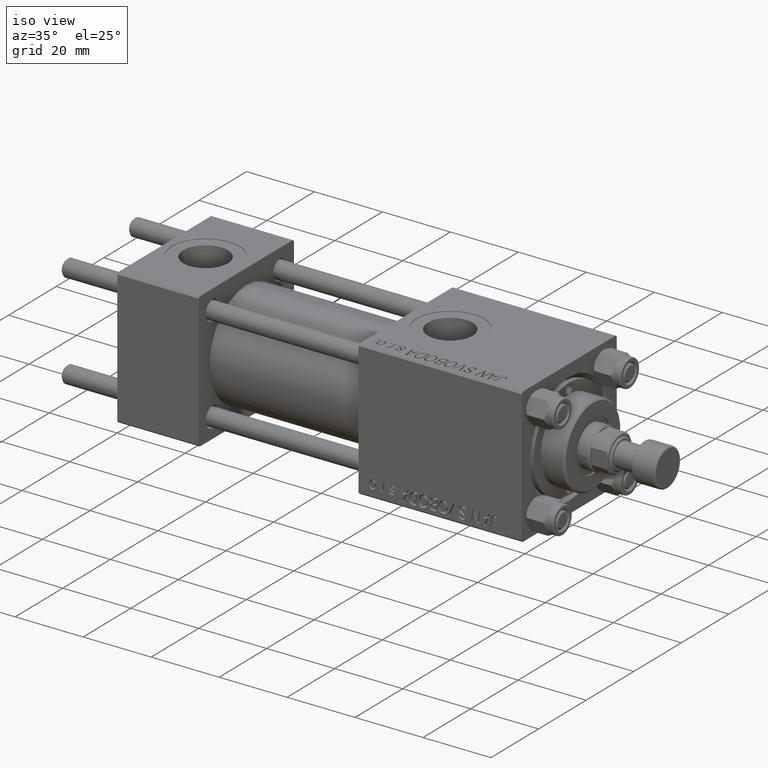
[diagram: clean part render]
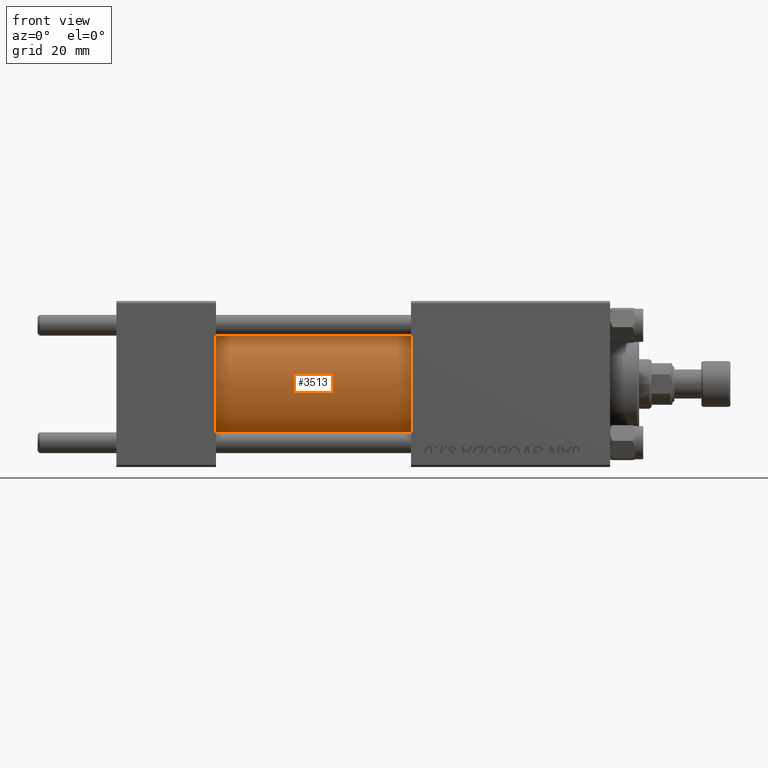
[diagram: tour spotlight — one face highlighted and labeled with its STEP entity id]
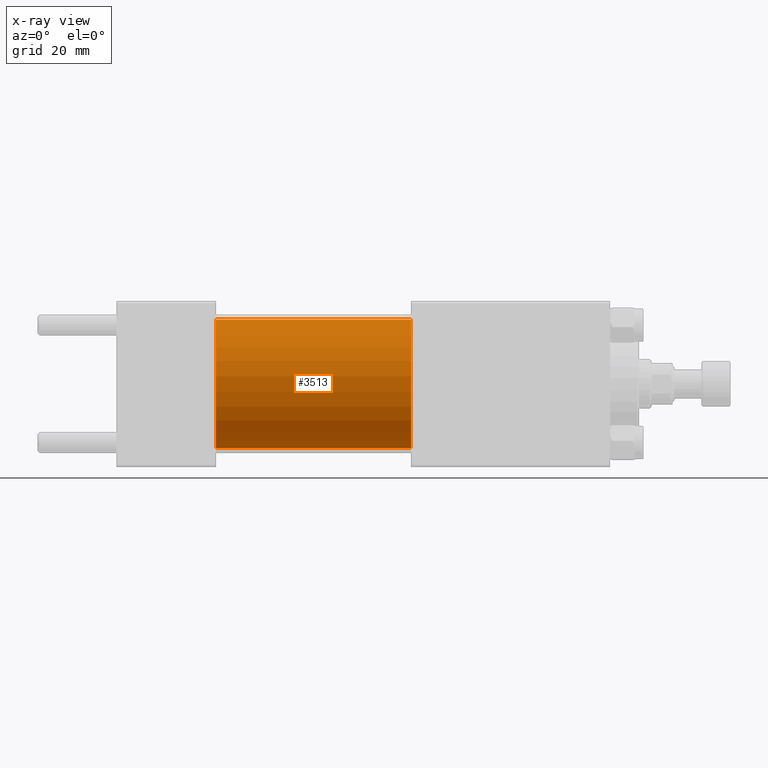
[diagram: x-ray of the same camera — body ghosted, this tour face saturated]
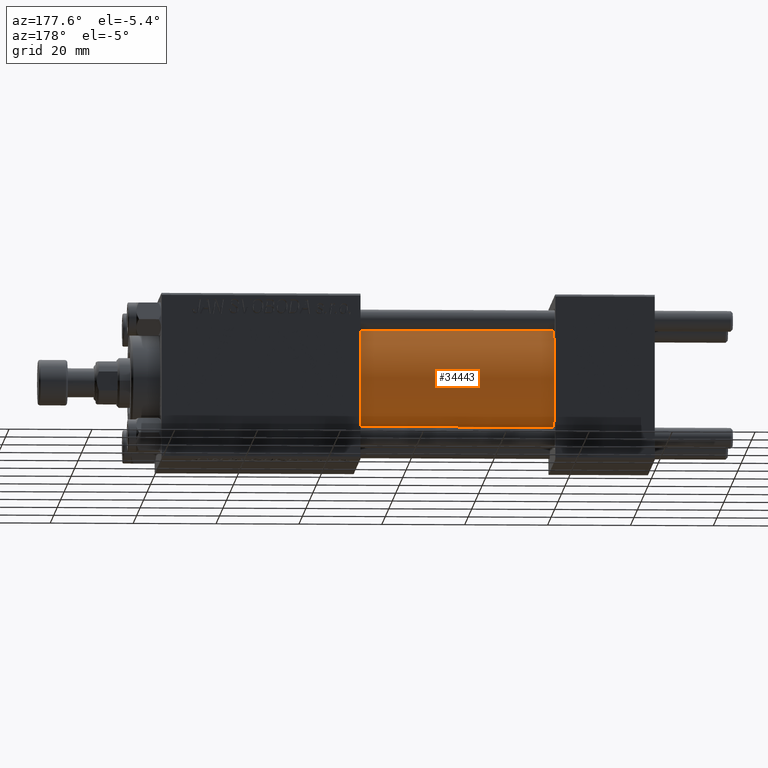
[diagram: tour spotlight — one face highlighted and labeled with its STEP entity id]
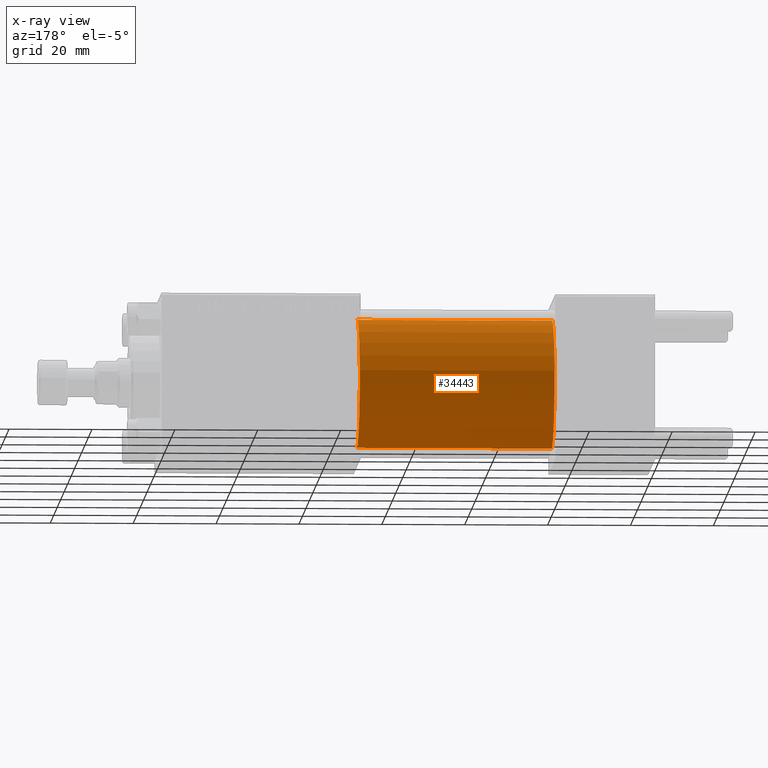
[diagram: x-ray of the same camera — body ghosted, this tour face saturated]
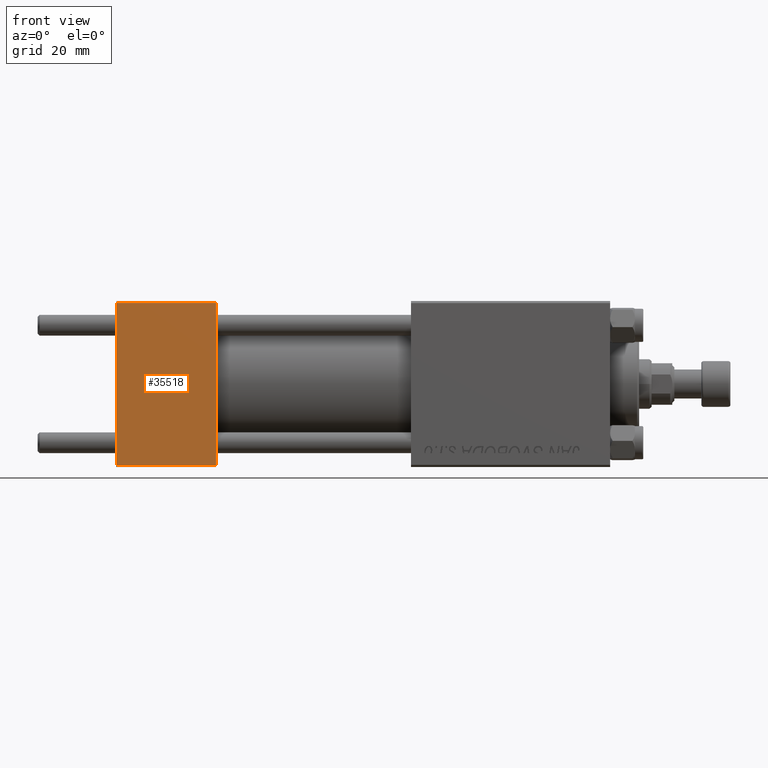
[diagram: tour spotlight — one face highlighted and labeled with its STEP entity id]
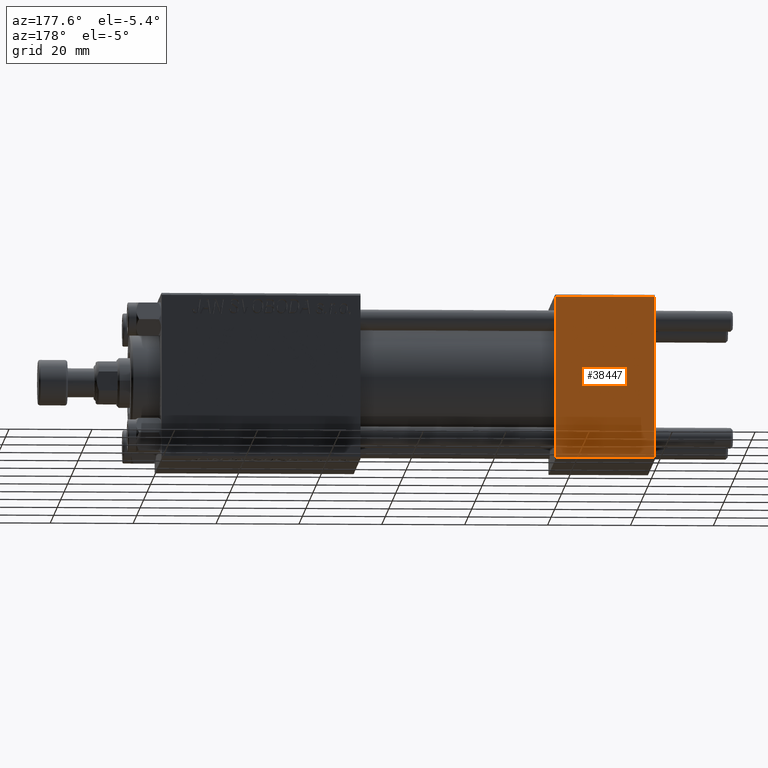
[diagram: tour spotlight — one face highlighted and labeled with its STEP entity id]
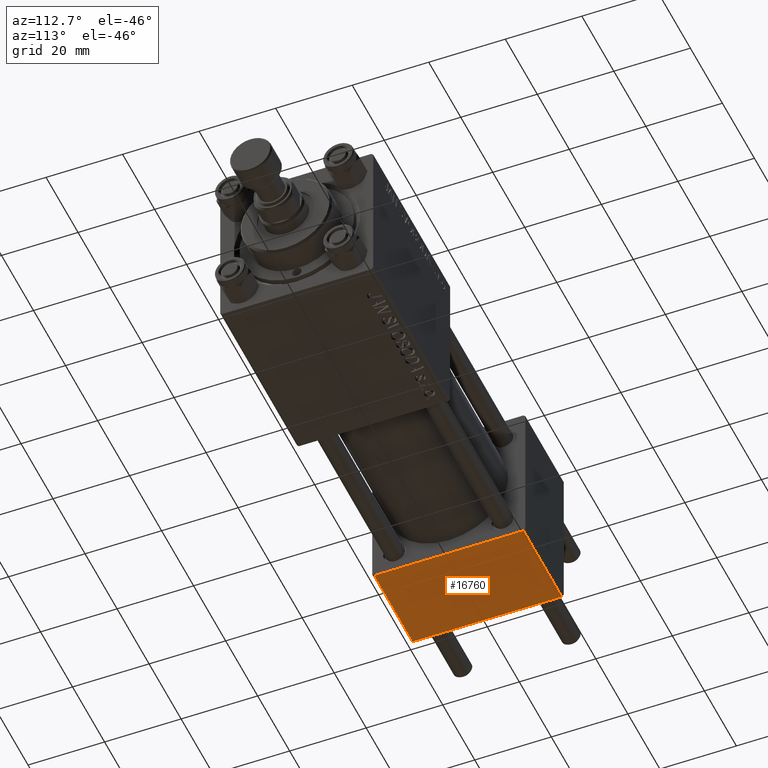
[diagram: tour spotlight — one face highlighted and labeled with its STEP entity id]
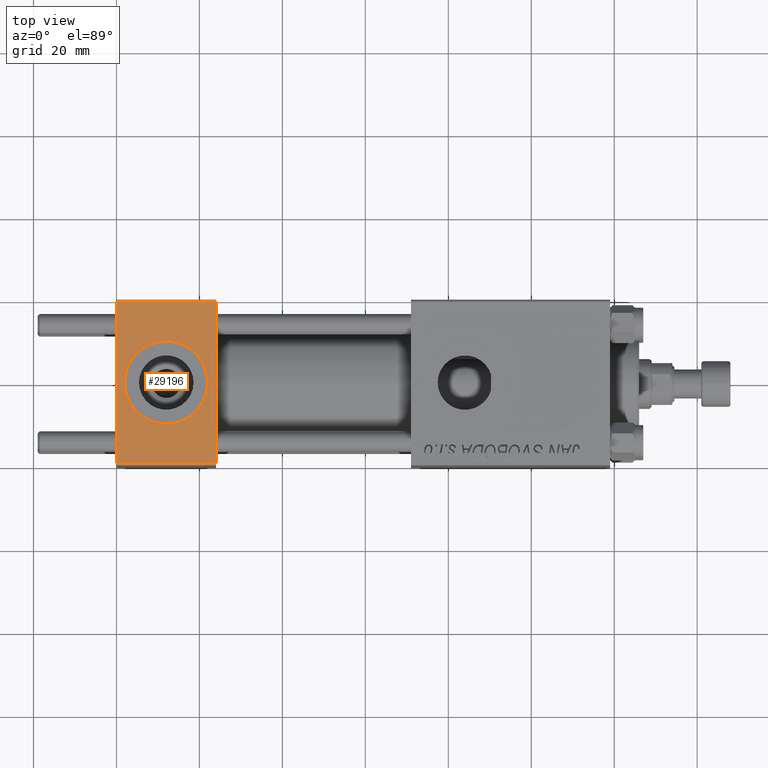
[diagram: tour spotlight — one face highlighted and labeled with its STEP entity id]
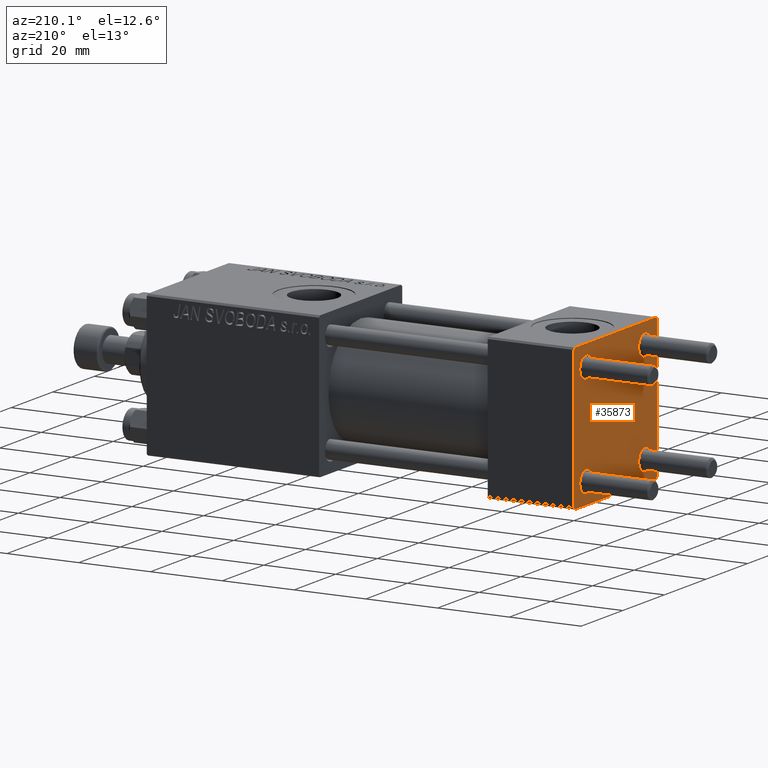
[diagram: tour spotlight — one face highlighted and labeled with its STEP entity id]
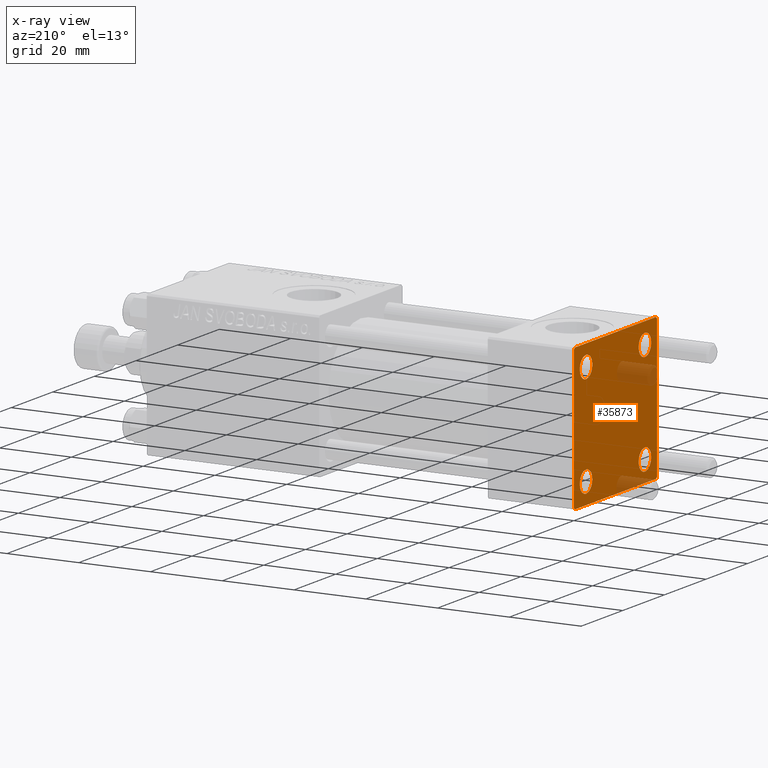
[diagram: x-ray of the same camera — body ghosted, this tour face saturated]
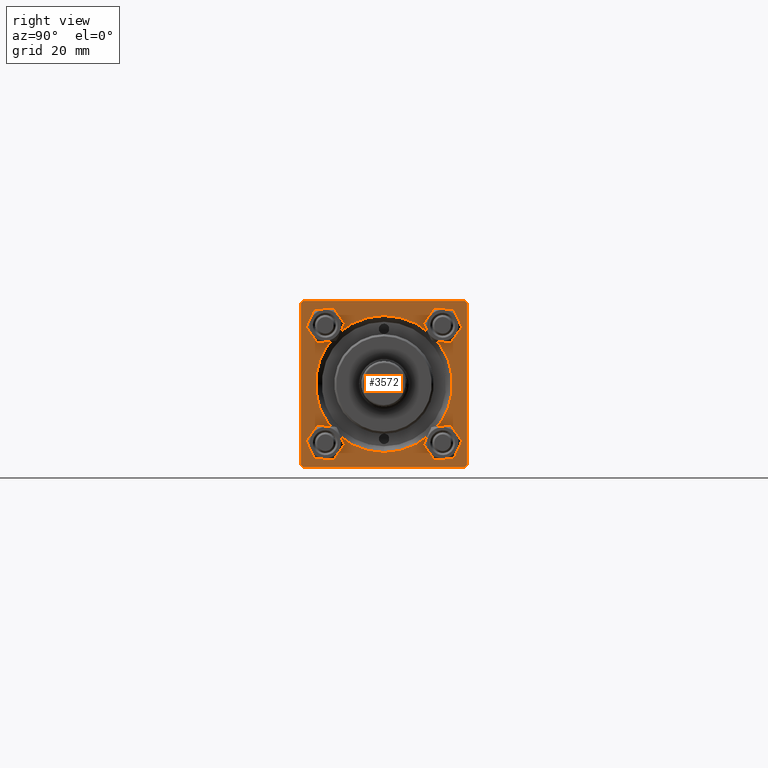
[diagram: tour spotlight — one face highlighted and labeled with its STEP entity id]
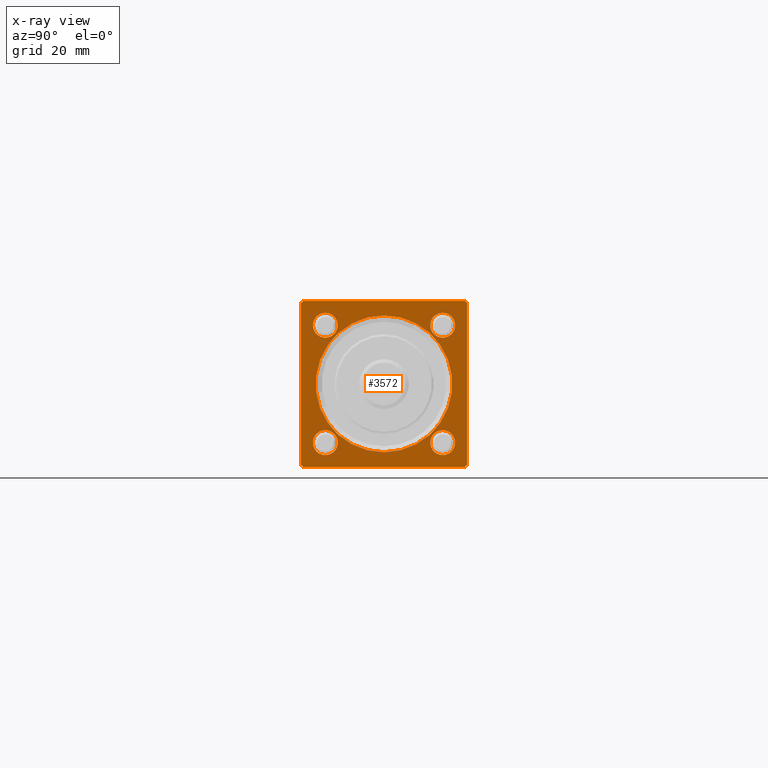
[diagram: x-ray of the same camera — body ghosted, this tour face saturated]
A machine part: a face-by-face anatomy tour. The part has 1151 B-rep faces; the first image is the clean iso view, then the 8 largest visible faces are spotlighted one at a time (largest first), each with its STEP entity span.

Face 1 — front view, entity #3513. An x-ray twin of the same camera follows (body ghosted, this face saturated) — the face is partly hidden behind the body. In plain terms, the highlighted cylindrical surface (partial cylindrical patch) has radius 15.5 mm, axis along (-1, -0, -0).
Definition (entity closure, byte-faithful):
#1953 = DIRECTION ( 'NONE',  ( 0.000000000000000000, 0.000000000000000000, 1.000000000000000000 ) ) ;
#3513 = ADVANCED_FACE ( 'NONE', ( #23607 ), #19534, .T. ) ;
#4528 = CARTESIAN_POINT ( 'NONE',  ( 71.00000000000001421, 0.000000000000000000, 0.000000000000000000 ) ) ;
#5428 = VERTEX_POINT ( 'NONE', #28054 ) ;
#5526 = DIRECTION ( 'NONE',  ( 1.000000000000000000, 0.000000000000000000, 0.000000000000000000 ) ) ;
#6020 = ORIENTED_EDGE ( 'NONE', *, *, #44082, .T. ) ;
#6085 = CARTESIAN_POINT ( 'NONE',  ( 71.00000000000001421, 0.000000000000000000, 15.50000000000000000 ) ) ;
#6610 = EDGE_CURVE ( 'NONE', #28425, #9209, #30020, .T. ) ;
#7470 = CARTESIAN_POINT ( 'NONE',  ( 71.00000000000001421, 0.000000000000000000, 15.50000000000000000 ) ) ;
#7784 = DIRECTION ( 'NONE',  ( 0.000000000000000000, 0.000000000000000000, -1.000000000000000000 ) ) ;
#9209 = VERTEX_POINT ( 'NONE', #35004 ) ;
#9906 = DIRECTION ( 'NONE',  ( -1.000000000000000000, -0.000000000000000000, -0.000000000000000000 ) ) ;
#12916 = CARTESIAN_POINT ( 'NONE',  ( 24.00000000000000000, 0.000000000000000000, 0.000000000000000000 ) ) ;
#16469 = DIRECTION ( 'NONE',  ( 0.000000000000000000, 0.000000000000000000, 1.000000000000000000 ) ) ;
#16800 = ORIENTED_EDGE ( 'NONE', *, *, #6610, .T. ) ;
#19534 = CYLINDRICAL_SURFACE ( 'NONE', #44805, 15.50000000000000000 ) ;
#22199 = CIRCLE ( 'NONE', #45013, 15.50000000000000000 ) ;
#22497 = DIRECTION ( 'NONE',  ( -1.000000000000000000, -0.000000000000000000, -0.000000000000000000 ) ) ;
#23607 = FACE_OUTER_BOUND ( 'NONE', #25718, .T. ) ;
#25718 = EDGE_LOOP ( 'NONE', ( #45813, #41938, #16800, #6020 ) ) ;
#25760 = VERTEX_POINT ( 'NONE', #31109 ) ;
#26889 = CARTESIAN_POINT ( 'NONE',  ( 71.00000000000001421, 0.000000000000000000, 0.000000000000000000 ) ) ;
#28054 = CARTESIAN_POINT ( 'NONE',  ( 24.00000000000000000, 1.898202538678397557E-15, -15.50000000000000000 ) ) ;
#28425 = VERTEX_POINT ( 'NONE', #7470 ) ;
#30020 = LINE ( 'NONE', #6085, #30218 ) ;
#30218 = VECTOR ( 'NONE', #9906, 1000.000000000000000 ) ;
#31099 = AXIS2_PLACEMENT_3D ( 'NONE', #12916, #5526, #1953 ) ;
#31109 = CARTESIAN_POINT ( 'NONE',  ( 71.00000000000001421, 1.898202538678397557E-15, -15.50000000000000000 ) ) ;
#33058 = EDGE_CURVE ( 'NONE', #25760, #5428, #34714, .T. ) ;
#34151 = VECTOR ( 'NONE', #22497, 1000.000000000000000 ) ;
#34714 = LINE ( 'NONE', #49794, #34151 ) ;
#35004 = CARTESIAN_POINT ( 'NONE',  ( 24.00000000000000000, 0.000000000000000000, 15.50000000000000000 ) ) ;
#35836 = DIRECTION ( 'NONE',  ( -1.000000000000000000, -0.000000000000000000, -0.000000000000000000 ) ) ;
#41938 = ORIENTED_EDGE ( 'NONE', *, *, #45023, .F. ) ;
#42447 = DIRECTION ( 'NONE',  ( 1.000000000000000000, 0.000000000000000000, 0.000000000000000000 ) ) ;
#43324 = CIRCLE ( 'NONE', #31099, 15.50000000000000000 ) ;
#44082 = EDGE_CURVE ( 'NONE', #9209, #5428, #43324, .T. ) ;
#44805 = AXIS2_PLACEMENT_3D ( 'NONE', #4528, #35836, #16469 ) ;
#45013 = AXIS2_PLACEMENT_3D ( 'NONE', #26889, #42447, #7784 ) ;
#45023 = EDGE_CURVE ( 'NONE', #28425, #25760, #22199, .T. ) ;
#45813 = ORIENTED_EDGE ( 'NONE', *, *, #33058, .F. ) ;
#49794 = CARTESIAN_POINT ( 'NONE',  ( 71.00000000000001421, 1.898202538678397557E-15, -15.50000000000000000 ) ) ;

Face 2 — auxiliary view, entity #34443. An x-ray twin of the same camera follows (body ghosted, this face saturated) — the face is partly hidden behind the body. In plain terms, the highlighted cylindrical surface (partial cylindrical patch) has radius 15.5 mm, axis along (-1, -0, -0).
Definition (entity closure, byte-faithful):
#1506 = DIRECTION ( 'NONE',  ( 0.000000000000000000, 0.000000000000000000, 1.000000000000000000 ) ) ;
#5428 = VERTEX_POINT ( 'NONE', #28054 ) ;
#6085 = CARTESIAN_POINT ( 'NONE',  ( 71.00000000000001421, 0.000000000000000000, 15.50000000000000000 ) ) ;
#6398 = AXIS2_PLACEMENT_3D ( 'NONE', #25702, #44317, #1506 ) ;
#6610 = EDGE_CURVE ( 'NONE', #28425, #9209, #30020, .T. ) ;
#7470 = CARTESIAN_POINT ( 'NONE',  ( 71.00000000000001421, 0.000000000000000000, 15.50000000000000000 ) ) ;
#9209 = VERTEX_POINT ( 'NONE', #35004 ) ;
#9906 = DIRECTION ( 'NONE',  ( -1.000000000000000000, -0.000000000000000000, -0.000000000000000000 ) ) ;
#10531 = DIRECTION ( 'NONE',  ( 0.000000000000000000, 0.000000000000000000, 1.000000000000000000 ) ) ;
#12752 = EDGE_CURVE ( 'NONE', #25760, #28425, #36827, .T. ) ;
#14360 = ORIENTED_EDGE ( 'NONE', *, *, #37669, .T. ) ;
#14870 = AXIS2_PLACEMENT_3D ( 'NONE', #40265, #24463, #40011 ) ;
#15086 = CARTESIAN_POINT ( 'NONE',  ( 24.00000000000000000, 0.000000000000000000, 0.000000000000000000 ) ) ;
#15105 = ORIENTED_EDGE ( 'NONE', *, *, #12752, .F. ) ;
#21875 = FACE_OUTER_BOUND ( 'NONE', #25369, .T. ) ;
#21943 = AXIS2_PLACEMENT_3D ( 'NONE', #15086, #34691, #10531 ) ;
#22497 = DIRECTION ( 'NONE',  ( -1.000000000000000000, -0.000000000000000000, -0.000000000000000000 ) ) ;
#23872 = ORIENTED_EDGE ( 'NONE', *, *, #6610, .F. ) ;
#24463 = DIRECTION ( 'NONE',  ( 1.000000000000000000, 0.000000000000000000, 0.000000000000000000 ) ) ;
#25369 = EDGE_LOOP ( 'NONE', ( #15105, #44344, #14360, #23872 ) ) ;
#25702 = CARTESIAN_POINT ( 'NONE',  ( 71.00000000000001421, 0.000000000000000000, 0.000000000000000000 ) ) ;
#25760 = VERTEX_POINT ( 'NONE', #31109 ) ;
#28054 = CARTESIAN_POINT ( 'NONE',  ( 24.00000000000000000, 1.898202538678397557E-15, -15.50000000000000000 ) ) ;
#28425 = VERTEX_POINT ( 'NONE', #7470 ) ;
#30020 = LINE ( 'NONE', #6085, #30218 ) ;
#30218 = VECTOR ( 'NONE', #9906, 1000.000000000000000 ) ;
#31109 = CARTESIAN_POINT ( 'NONE',  ( 71.00000000000001421, 1.898202538678397557E-15, -15.50000000000000000 ) ) ;
#33058 = EDGE_CURVE ( 'NONE', #25760, #5428, #34714, .T. ) ;
#34151 = VECTOR ( 'NONE', #22497, 1000.000000000000000 ) ;
#34443 = ADVANCED_FACE ( 'NONE', ( #21875 ), #45341, .T. ) ;
#34691 = DIRECTION ( 'NONE',  ( 1.000000000000000000, 0.000000000000000000, 0.000000000000000000 ) ) ;
#34714 = LINE ( 'NONE', #49794, #34151 ) ;
#35004 = CARTESIAN_POINT ( 'NONE',  ( 24.00000000000000000, 0.000000000000000000, 15.50000000000000000 ) ) ;
#35758 = CIRCLE ( 'NONE', #21943, 15.50000000000000000 ) ;
#36827 = CIRCLE ( 'NONE', #14870, 15.50000000000000000 ) ;
#37669 = EDGE_CURVE ( 'NONE', #5428, #9209, #35758, .T. ) ;
#40011 = DIRECTION ( 'NONE',  ( 0.000000000000000000, 0.000000000000000000, -1.000000000000000000 ) ) ;
#40265 = CARTESIAN_POINT ( 'NONE',  ( 71.00000000000001421, 0.000000000000000000, 0.000000000000000000 ) ) ;
#44317 = DIRECTION ( 'NONE',  ( -1.000000000000000000, -0.000000000000000000, -0.000000000000000000 ) ) ;
#44344 = ORIENTED_EDGE ( 'NONE', *, *, #33058, .T. ) ;
#45341 = CYLINDRICAL_SURFACE ( 'NONE', #6398, 15.50000000000000000 ) ;
#49794 = CARTESIAN_POINT ( 'NONE',  ( 71.00000000000001421, 1.898202538678397557E-15, -15.50000000000000000 ) ) ;

Face 3 — front view, entity #35518. In plain terms, the highlighted planar face has unit normal (0, 1, 0).
Definition (entity closure, byte-faithful):
#2126 = ORIENTED_EDGE ( 'NONE', *, *, #19627, .T. ) ;
#6123 = ORIENTED_EDGE ( 'NONE', *, *, #20859, .T. ) ;
#6447 = DIRECTION ( 'NONE',  ( 1.000000000000000000, 0.000000000000000000, 0.000000000000000000 ) ) ;
#6906 = EDGE_CURVE ( 'NONE', #10448, #24958, #37099, .T. ) ;
#7437 = CARTESIAN_POINT ( 'NONE',  ( 24.00000000000000000, -20.00000000000000000, -19.49999999999999645 ) ) ;
#8883 = VERTEX_POINT ( 'NONE', #36579 ) ;
#9632 = CARTESIAN_POINT ( 'NONE',  ( 24.00000000000000000, -20.00000000000000355, 19.99999999999998934 ) ) ;
#10448 = VERTEX_POINT ( 'NONE', #42455 ) ;
#11491 = EDGE_LOOP ( 'NONE', ( #11779, #2126, #18473, #6123 ) ) ;
#11718 = DIRECTION ( 'NONE',  ( -1.000000000000000000, 0.000000000000000000, 0.000000000000000000 ) ) ;
#11779 = ORIENTED_EDGE ( 'NONE', *, *, #6906, .T. ) ;
#14443 = FACE_OUTER_BOUND ( 'NONE', #11491, .T. ) ;
#14943 = PLANE ( 'NONE',  #37342 ) ;
#15186 = CARTESIAN_POINT ( 'NONE',  ( 24.00000000000000000, -20.00000000000000355, 19.99999999999998934 ) ) ;
#17522 = LINE ( 'NONE', #9632, #50095 ) ;
#17725 = CARTESIAN_POINT ( 'NONE',  ( 0.000000000000000000, -20.00000000000000355, 19.99999999999998934 ) ) ;
#18473 = ORIENTED_EDGE ( 'NONE', *, *, #18947, .F. ) ;
#18947 = EDGE_CURVE ( 'NONE', #30636, #8883, #17522, .T. ) ;
#19627 = EDGE_CURVE ( 'NONE', #24958, #8883, #34697, .T. ) ;
#20859 = EDGE_CURVE ( 'NONE', #30636, #10448, #35139, .T. ) ;
#23174 = CARTESIAN_POINT ( 'NONE',  ( 24.00000000000000000, -20.00000000000000355, 19.49999999999998224 ) ) ;
#24958 = VERTEX_POINT ( 'NONE', #26969 ) ;
#26969 = CARTESIAN_POINT ( 'NONE',  ( 0.000000000000000000, -20.00000000000000000, -19.49999999999999645 ) ) ;
#30636 = VERTEX_POINT ( 'NONE', #46701 ) ;
#33579 = DIRECTION ( 'NONE',  ( 0.000000000000000000, 8.673617379884036705E-17, -1.000000000000000000 ) ) ;
#33810 = DIRECTION ( 'NONE',  ( 0.000000000000000000, -8.673617379884036705E-17, 1.000000000000000000 ) ) ;
#34697 = LINE ( 'NONE', #7437, #37050 ) ;
#35139 = LINE ( 'NONE', #23174, #42007 ) ;
#35518 = ADVANCED_FACE ( 'NONE', ( #14443 ), #14943, .F. ) ;
#36579 = CARTESIAN_POINT ( 'NONE',  ( 24.00000000000000000, -20.00000000000000000, -19.49999999999999645 ) ) ;
#37050 = VECTOR ( 'NONE', #6447, 1000.000000000000000 ) ;
#37099 = LINE ( 'NONE', #17725, #38401 ) ;
#37342 = AXIS2_PLACEMENT_3D ( 'NONE', #15186, #46037, #33810 ) ;
#38401 = VECTOR ( 'NONE', #48578, 1000.000000000000000 ) ;
#42007 = VECTOR ( 'NONE', #11718, 1000.000000000000000 ) ;
#42455 = CARTESIAN_POINT ( 'NONE',  ( 0.000000000000000000, -20.00000000000000355, 19.49999999999998224 ) ) ;
#46037 = DIRECTION ( 'NONE',  ( -0.000000000000000000, 1.000000000000000000, 8.673617379884036705E-17 ) ) ;
#46701 = CARTESIAN_POINT ( 'NONE',  ( 24.00000000000000000, -20.00000000000000355, 19.49999999999998224 ) ) ;
#48578 = DIRECTION ( 'NONE',  ( 0.000000000000000000, 8.673617379884036705E-17, -1.000000000000000000 ) ) ;
#50095 = VECTOR ( 'NONE', #33579, 1000.000000000000000 ) ;

Face 4 — auxiliary view, entity #38447. In plain terms, the highlighted planar face has unit normal (0, 1, 0).
Definition (entity closure, byte-faithful):
#906 = PLANE ( 'NONE',  #13835 ) ;
#1872 = ORIENTED_EDGE ( 'NONE', *, *, #49480, .F. ) ;
#4087 = VERTEX_POINT ( 'NONE', #12541 ) ;
#5883 = VERTEX_POINT ( 'NONE', #27177 ) ;
#7706 = DIRECTION ( 'NONE',  ( -1.000000000000000000, 0.000000000000000000, 0.000000000000000000 ) ) ;
#8815 = DIRECTION ( 'NONE',  ( -0.000000000000000000, 1.000000000000000000, 0.000000000000000000 ) ) ;
#12541 = CARTESIAN_POINT ( 'NONE',  ( 24.00000000000000000, 20.00000000000000000, 19.49999999999999289 ) ) ;
#13835 = AXIS2_PLACEMENT_3D ( 'NONE', #16440, #8815, #15947 ) ;
#15803 = LINE ( 'NONE', #38235, #45717 ) ;
#15947 = DIRECTION ( 'NONE',  ( 0.000000000000000000, -0.000000000000000000, 1.000000000000000000 ) ) ;
#16440 = CARTESIAN_POINT ( 'NONE',  ( 24.00000000000000000, 20.00000000000000000, 20.00000000000000000 ) ) ;
#18673 = LINE ( 'NONE', #22248, #23532 ) ;
#21390 = ORIENTED_EDGE ( 'NONE', *, *, #41177, .T. ) ;
#22248 = CARTESIAN_POINT ( 'NONE',  ( 24.00000000000000000, 20.00000000000000000, -19.50000000000002132 ) ) ;
#23532 = VECTOR ( 'NONE', #7706, 1000.000000000000000 ) ;
#23940 = DIRECTION ( 'NONE',  ( 1.000000000000000000, 0.000000000000000000, 0.000000000000000000 ) ) ;
#26092 = ORIENTED_EDGE ( 'NONE', *, *, #33120, .T. ) ;
#26824 = CARTESIAN_POINT ( 'NONE',  ( 24.00000000000000000, 20.00000000000000000, -19.50000000000002132 ) ) ;
#27177 = CARTESIAN_POINT ( 'NONE',  ( 0.000000000000000000, 20.00000000000000000, 19.49999999999999289 ) ) ;
#28400 = VERTEX_POINT ( 'NONE', #26824 ) ;
#28570 = CARTESIAN_POINT ( 'NONE',  ( 0.000000000000000000, 20.00000000000000000, -19.50000000000002132 ) ) ;
#29456 = ORIENTED_EDGE ( 'NONE', *, *, #46995, .T. ) ;
#33120 = EDGE_CURVE ( 'NONE', #28400, #49048, #18673, .T. ) ;
#35610 = CARTESIAN_POINT ( 'NONE',  ( 0.000000000000000000, 20.00000000000000000, 20.00000000000000000 ) ) ;
#35806 = FACE_OUTER_BOUND ( 'NONE', #38916, .T. ) ;
#38235 = CARTESIAN_POINT ( 'NONE',  ( 24.00000000000000000, 20.00000000000000000, 19.49999999999999289 ) ) ;
#38447 = ADVANCED_FACE ( 'NONE', ( #35806 ), #906, .T. ) ;
#38582 = DIRECTION ( 'NONE',  ( 0.000000000000000000, 0.000000000000000000, -1.000000000000000000 ) ) ;
#38916 = EDGE_LOOP ( 'NONE', ( #29456, #26092, #1872, #21390 ) ) ;
#39437 = LINE ( 'NONE', #35610, #44194 ) ;
#40046 = VECTOR ( 'NONE', #38582, 1000.000000000000000 ) ;
#41177 = EDGE_CURVE ( 'NONE', #5883, #4087, #15803, .T. ) ;
#41927 = CARTESIAN_POINT ( 'NONE',  ( 24.00000000000000000, 20.00000000000000000, 20.00000000000000000 ) ) ;
#42409 = LINE ( 'NONE', #41927, #40046 ) ;
#44194 = VECTOR ( 'NONE', #47609, 1000.000000000000000 ) ;
#45717 = VECTOR ( 'NONE', #23940, 1000.000000000000000 ) ;
#46995 = EDGE_CURVE ( 'NONE', #4087, #28400, #42409, .T. ) ;
#47609 = DIRECTION ( 'NONE',  ( 0.000000000000000000, 0.000000000000000000, -1.000000000000000000 ) ) ;
#49048 = VERTEX_POINT ( 'NONE', #28570 ) ;
#49480 = EDGE_CURVE ( 'NONE', #5883, #49048, #39437, .T. ) ;

Face 5 — auxiliary view, entity #16760. In plain terms, the highlighted planar face has unit normal (0, -0, -1).
Definition (entity closure, byte-faithful):
#923 = CARTESIAN_POINT ( 'NONE',  ( 24.00000000000000000, 19.50000000000000711, -20.00000000000000711 ) ) ;
#2132 = EDGE_LOOP ( 'NONE', ( #4290, #19491, #4026, #10792 ) ) ;
#3811 = VECTOR ( 'NONE', #15378, 1000.000000000000000 ) ;
#4026 = ORIENTED_EDGE ( 'NONE', *, *, #33222, .T. ) ;
#4290 = ORIENTED_EDGE ( 'NONE', *, *, #13664, .F. ) ;
#5084 = VECTOR ( 'NONE', #12653, 1000.000000000000000 ) ;
#5890 = DIRECTION ( 'NONE',  ( 0.000000000000000000, -1.000000000000000000, 1.734723475976807094E-16 ) ) ;
#9162 = DIRECTION ( 'NONE',  ( 0.000000000000000000, -1.734723475976806848E-16, -1.000000000000000000 ) ) ;
#10201 = CARTESIAN_POINT ( 'NONE',  ( 0.000000000000000000, -19.50000000000000711, -20.00000000000000000 ) ) ;
#10792 = ORIENTED_EDGE ( 'NONE', *, *, #25614, .T. ) ;
#11248 = VERTEX_POINT ( 'NONE', #17192 ) ;
#12653 = DIRECTION ( 'NONE',  ( 1.000000000000000000, 0.000000000000000000, 0.000000000000000000 ) ) ;
#12973 = FACE_OUTER_BOUND ( 'NONE', #2132, .T. ) ;
#13221 = DIRECTION ( 'NONE',  ( 0.000000000000000000, 1.000000000000000000, -1.734723475976806848E-16 ) ) ;
#13664 = EDGE_CURVE ( 'NONE', #36878, #28506, #17842, .T. ) ;
#15378 = DIRECTION ( 'NONE',  ( -1.000000000000000000, 0.000000000000000000, 0.000000000000000000 ) ) ;
#16760 = ADVANCED_FACE ( 'NONE', ( #12973 ), #28510, .T. ) ;
#17192 = CARTESIAN_POINT ( 'NONE',  ( 24.00000000000000000, -19.50000000000000711, -20.00000000000000000 ) ) ;
#17245 = CARTESIAN_POINT ( 'NONE',  ( 24.00000000000000000, 19.50000000000000711, -20.00000000000000711 ) ) ;
#17319 = VECTOR ( 'NONE', #29826, 1000.000000000000000 ) ;
#17842 = LINE ( 'NONE', #33389, #17319 ) ;
#19046 = AXIS2_PLACEMENT_3D ( 'NONE', #36166, #9162, #13221 ) ;
#19201 = CARTESIAN_POINT ( 'NONE',  ( 0.000000000000000000, -19.50000000000000711, -20.00000000000000000 ) ) ;
#19491 = ORIENTED_EDGE ( 'NONE', *, *, #46920, .T. ) ;
#21680 = CARTESIAN_POINT ( 'NONE',  ( 24.00000000000000000, 20.00000000000000000, -20.00000000000000711 ) ) ;
#25614 = EDGE_CURVE ( 'NONE', #11248, #28506, #31668, .T. ) ;
#28506 = VERTEX_POINT ( 'NONE', #10201 ) ;
#28510 = PLANE ( 'NONE',  #19046 ) ;
#29826 = DIRECTION ( 'NONE',  ( 0.000000000000000000, -1.000000000000000000, 1.734723475976807094E-16 ) ) ;
#31668 = LINE ( 'NONE', #19201, #3811 ) ;
#33222 = EDGE_CURVE ( 'NONE', #36274, #11248, #49234, .T. ) ;
#33389 = CARTESIAN_POINT ( 'NONE',  ( 0.000000000000000000, 20.00000000000000000, -20.00000000000000711 ) ) ;
#36166 = CARTESIAN_POINT ( 'NONE',  ( 24.00000000000000000, 20.00000000000000000, -20.00000000000000711 ) ) ;
#36274 = VERTEX_POINT ( 'NONE', #17245 ) ;
#36878 = VERTEX_POINT ( 'NONE', #39698 ) ;
#39698 = CARTESIAN_POINT ( 'NONE',  ( 0.000000000000000000, 19.50000000000000711, -20.00000000000000711 ) ) ;
#40642 = VECTOR ( 'NONE', #5890, 1000.000000000000000 ) ;
#46920 = EDGE_CURVE ( 'NONE', #36878, #36274, #47573, .T. ) ;
#47573 = LINE ( 'NONE', #923, #5084 ) ;
#49234 = LINE ( 'NONE', #21680, #40642 ) ;

Face 6 — top view, entity #29196. In plain terms, the highlighted planar face has unit normal (0, 0, -1).
Definition (entity closure, byte-faithful):
#2929 = VERTEX_POINT ( 'NONE', #15646 ) ;
#3100 = VERTEX_POINT ( 'NONE', #43044 ) ;
#5666 = ORIENTED_EDGE ( 'NONE', *, *, #25970, .F. ) ;
#6539 = EDGE_CURVE ( 'NONE', #34875, #9850, #32671, .T. ) ;
#7349 = CARTESIAN_POINT ( 'NONE',  ( 0.000000000000000000, 19.50000000000000000, 20.00000000000000000 ) ) ;
#7962 = EDGE_CURVE ( 'NONE', #2929, #38338, #27929, .T. ) ;
#8214 = CARTESIAN_POINT ( 'NONE',  ( 0.000000000000000000, 20.00000000000000000, 20.00000000000000000 ) ) ;
#9850 = VERTEX_POINT ( 'NONE', #28007 ) ;
#9999 = VECTOR ( 'NONE', #32748, 1000.000000000000000 ) ;
#11253 = AXIS2_PLACEMENT_3D ( 'NONE', #30424, #41649, #26348 ) ;
#13413 = EDGE_CURVE ( 'NONE', #3100, #32442, #29429, .T. ) ;
#13898 = DIRECTION ( 'NONE',  ( 1.000000000000000000, 0.000000000000000000, 0.000000000000000000 ) ) ;
#15646 = CARTESIAN_POINT ( 'NONE',  ( 0.000000000000000000, -19.49999999999999289, 19.99999999999998934 ) ) ;
#15945 = CIRCLE ( 'NONE', #20802, 9.999999999999998224 ) ;
#16455 = CARTESIAN_POINT ( 'NONE',  ( 24.00000000000000000, -19.49999999999999289, 19.99999999999998934 ) ) ;
#16678 = ORIENTED_EDGE ( 'NONE', *, *, #13413, .T. ) ;
#17721 = CARTESIAN_POINT ( 'NONE',  ( 12.00000000000000000, 1.540743955509788682E-30, 19.99999999999999645 ) ) ;
#19299 = EDGE_LOOP ( 'NONE', ( #44757, #36365, #5666, #16678 ) ) ;
#20073 = VECTOR ( 'NONE', #34138, 1000.000000000000000 ) ;
#20244 = EDGE_CURVE ( 'NONE', #9850, #34875, #15945, .T. ) ;
#20802 = AXIS2_PLACEMENT_3D ( 'NONE', #17721, #48826, #13898 ) ;
#21415 = EDGE_CURVE ( 'NONE', #32442, #2929, #23492, .T. ) ;
#22897 = CARTESIAN_POINT ( 'NONE',  ( 24.00000000000000000, 20.00000000000000000, 20.00000000000000000 ) ) ;
#23492 = LINE ( 'NONE', #8214, #43630 ) ;
#25399 = CARTESIAN_POINT ( 'NONE',  ( 24.00000000000000000, -19.49999999999999289, 19.99999999999998934 ) ) ;
#25970 = EDGE_CURVE ( 'NONE', #3100, #38338, #35820, .T. ) ;
#26348 = DIRECTION ( 'NONE',  ( 0.000000000000000000, 1.000000000000000000, 2.602085213965210149E-16 ) ) ;
#26931 = VECTOR ( 'NONE', #32258, 1000.000000000000000 ) ;
#27929 = LINE ( 'NONE', #16455, #26931 ) ;
#28007 = CARTESIAN_POINT ( 'NONE',  ( 2.000000000000003553, 1.224646799147354440E-15, 19.99999999999999645 ) ) ;
#29196 = ADVANCED_FACE ( 'NONE', ( #50066, #34248 ), #38070, .F. ) ;
#29429 = LINE ( 'NONE', #44990, #9999 ) ;
#29766 = CARTESIAN_POINT ( 'NONE',  ( 12.00000000000000000, 1.540743955509788682E-30, 19.99999999999999645 ) ) ;
#30424 = CARTESIAN_POINT ( 'NONE',  ( 24.00000000000000000, 20.00000000000000000, 20.00000000000000000 ) ) ;
#32258 = DIRECTION ( 'NONE',  ( 1.000000000000000000, 0.000000000000000000, 0.000000000000000000 ) ) ;
#32442 = VERTEX_POINT ( 'NONE', #7349 ) ;
#32671 = CIRCLE ( 'NONE', #48157, 9.999999999999998224 ) ;
#32748 = DIRECTION ( 'NONE',  ( -1.000000000000000000, 0.000000000000000000, 0.000000000000000000 ) ) ;
#32974 = CARTESIAN_POINT ( 'NONE',  ( 22.00000000000000000, 1.540743955509788682E-30, 19.99999999999999645 ) ) ;
#34138 = DIRECTION ( 'NONE',  ( 0.000000000000000000, -1.000000000000000000, -2.602085213965210149E-16 ) ) ;
#34248 = FACE_OUTER_BOUND ( 'NONE', #19299, .T. ) ;
#34875 = VERTEX_POINT ( 'NONE', #32974 ) ;
#35001 = EDGE_LOOP ( 'NONE', ( #37465, #37489 ) ) ;
#35820 = LINE ( 'NONE', #22897, #20073 ) ;
#36365 = ORIENTED_EDGE ( 'NONE', *, *, #7962, .T. ) ;
#37413 = DIRECTION ( 'NONE',  ( 1.000000000000000000, 0.000000000000000000, 0.000000000000000000 ) ) ;
#37465 = ORIENTED_EDGE ( 'NONE', *, *, #6539, .F. ) ;
#37489 = ORIENTED_EDGE ( 'NONE', *, *, #20244, .F. ) ;
#38070 = PLANE ( 'NONE',  #11253 ) ;
#38338 = VERTEX_POINT ( 'NONE', #25399 ) ;
#40719 = DIRECTION ( 'NONE',  ( 0.000000000000000000, 0.000000000000000000, 1.000000000000000000 ) ) ;
#41649 = DIRECTION ( 'NONE',  ( 0.000000000000000000, 2.602085213965210149E-16, -1.000000000000000000 ) ) ;
#43044 = CARTESIAN_POINT ( 'NONE',  ( 24.00000000000000000, 19.50000000000000000, 20.00000000000000000 ) ) ;
#43630 = VECTOR ( 'NONE', #46208, 1000.000000000000000 ) ;
#44757 = ORIENTED_EDGE ( 'NONE', *, *, #21415, .T. ) ;
#44990 = CARTESIAN_POINT ( 'NONE',  ( 0.000000000000000000, 19.50000000000000000, 20.00000000000000000 ) ) ;
#46208 = DIRECTION ( 'NONE',  ( 0.000000000000000000, -1.000000000000000000, -2.602085213965210149E-16 ) ) ;
#48157 = AXIS2_PLACEMENT_3D ( 'NONE', #29766, #40719, #37413 ) ;
#48826 = DIRECTION ( 'NONE',  ( 0.000000000000000000, 0.000000000000000000, 1.000000000000000000 ) ) ;
#50066 = FACE_BOUND ( 'NONE', #35001, .T. ) ;

Face 7 — auxiliary view, entity #35873. An x-ray twin of the same camera follows (body ghosted, this face saturated) — the face is partly hidden behind the body. In plain terms, the highlighted planar face has unit normal (-1, 0, 0).
Definition (entity closure, byte-faithful):
#538 = DIRECTION ( 'NONE',  ( 1.000000000000000000, 0.000000000000000000, 0.000000000000000000 ) ) ;
#728 = EDGE_CURVE ( 'NONE', #46330, #18370, #4388, .T. ) ;
#765 = VERTEX_POINT ( 'NONE', #24525 ) ;
#1053 = EDGE_CURVE ( 'NONE', #8835, #10294, #46764, .T. ) ;
#2332 = DIRECTION ( 'NONE',  ( -0.000000000000000000, -0.7071067811865524577, -0.7071067811865426878 ) ) ;
#2802 = EDGE_LOOP ( 'NONE', ( #12270, #36214 ) ) ;
#2833 = DIRECTION ( 'NONE',  ( 1.000000000000000000, 0.000000000000000000, 0.000000000000000000 ) ) ;
#2861 = CARTESIAN_POINT ( 'NONE',  ( 0.000000000000000000, -14.14999999999999503, 14.15000000000000391 ) ) ;
#2929 = VERTEX_POINT ( 'NONE', #15646 ) ;
#3091 = ORIENTED_EDGE ( 'NONE', *, *, #45438, .T. ) ;
#3527 = CIRCLE ( 'NONE', #25458, 3.000000000000000888 ) ;
#3615 = CARTESIAN_POINT ( 'NONE',  ( 0.000000000000000000, 0.000000000000000000, 0.000000000000000000 ) ) ;
#3864 = FACE_BOUND ( 'NONE', #2802, .T. ) ;
#4388 = CIRCLE ( 'NONE', #10922, 3.000000000000000888 ) ;
#4665 = EDGE_CURVE ( 'NONE', #10448, #2929, #38847, .T. ) ;
#4902 = CIRCLE ( 'NONE', #17093, 3.000000000000000888 ) ;
#5511 = CARTESIAN_POINT ( 'NONE',  ( 0.000000000000000000, -14.14999999999999503, 17.15000000000000568 ) ) ;
#5883 = VERTEX_POINT ( 'NONE', #27177 ) ;
#6052 = CARTESIAN_POINT ( 'NONE',  ( 0.000000000000000000, -14.14999999999999503, 11.15000000000000213 ) ) ;
#6230 = VERTEX_POINT ( 'NONE', #41295 ) ;
#6414 = DIRECTION ( 'NONE',  ( 1.000000000000000000, 0.000000000000000000, 0.000000000000000000 ) ) ;
#6906 = EDGE_CURVE ( 'NONE', #10448, #24958, #37099, .T. ) ;
#7130 = LINE ( 'NONE', #23151, #49811 ) ;
#7296 = ORIENTED_EDGE ( 'NONE', *, *, #13722, .T. ) ;
#7349 = CARTESIAN_POINT ( 'NONE',  ( 0.000000000000000000, 19.50000000000000000, 20.00000000000000000 ) ) ;
#7419 = FACE_BOUND ( 'NONE', #26856, .T. ) ;
#7613 = EDGE_LOOP ( 'NONE', ( #21229, #15137 ) ) ;
#7619 = EDGE_CURVE ( 'NONE', #32442, #5883, #7130, .T. ) ;
#7770 = ORIENTED_EDGE ( 'NONE', *, *, #21811, .T. ) ;
#7909 = CARTESIAN_POINT ( 'NONE',  ( 0.000000000000000000, -19.75000000000020961, -19.74999999999979394 ) ) ;
#7932 = CARTESIAN_POINT ( 'NONE',  ( 0.000000000000000000, -14.14999999999999503, 14.15000000000000391 ) ) ;
#7971 = CARTESIAN_POINT ( 'NONE',  ( 0.000000000000000000, 14.14999999999999858, 14.15000000000000036 ) ) ;
#8214 = CARTESIAN_POINT ( 'NONE',  ( 0.000000000000000000, 20.00000000000000000, 20.00000000000000000 ) ) ;
#8835 = VERTEX_POINT ( 'NONE', #5511 ) ;
#9990 = DIRECTION ( 'NONE',  ( 0.000000000000000000, 0.000000000000000000, 1.000000000000000000 ) ) ;
#10201 = CARTESIAN_POINT ( 'NONE',  ( 0.000000000000000000, -19.50000000000000711, -20.00000000000000000 ) ) ;
#10294 = VERTEX_POINT ( 'NONE', #6052 ) ;
#10352 = CARTESIAN_POINT ( 'NONE',  ( 0.000000000000000000, -14.14999999999999503, -11.15000000000000391 ) ) ;
#10448 = VERTEX_POINT ( 'NONE', #42455 ) ;
#10922 = AXIS2_PLACEMENT_3D ( 'NONE', #27849, #43906, #43403 ) ;
#11303 = DIRECTION ( 'NONE',  ( 0.000000000000000000, 0.000000000000000000, 1.000000000000000000 ) ) ;
#12220 = CARTESIAN_POINT ( 'NONE',  ( 0.000000000000000000, 14.14999999999999858, -14.15000000000000036 ) ) ;
#12270 = ORIENTED_EDGE ( 'NONE', *, *, #728, .T. ) ;
#12484 = CARTESIAN_POINT ( 'NONE',  ( 0.000000000000000000, -14.14999999999999503, -14.15000000000000391 ) ) ;
#13545 = CIRCLE ( 'NONE', #20046, 3.000000000000000888 ) ;
#13664 = EDGE_CURVE ( 'NONE', #36878, #28506, #17842, .T. ) ;
#13722 = EDGE_CURVE ( 'NONE', #765, #6230, #41784, .T. ) ;
#13791 = LINE ( 'NONE', #45401, #22989 ) ;
#15137 = ORIENTED_EDGE ( 'NONE', *, *, #34331, .T. ) ;
#15392 = AXIS2_PLACEMENT_3D ( 'NONE', #3615, #19136, #34677 ) ;
#15646 = CARTESIAN_POINT ( 'NONE',  ( 0.000000000000000000, -19.49999999999999289, 19.99999999999998934 ) ) ;
#15816 = FACE_BOUND ( 'NONE', #16557, .T. ) ;
#16076 = DIRECTION ( 'NONE',  ( 0.000000000000000000, 0.000000000000000000, 1.000000000000000000 ) ) ;
#16533 = DIRECTION ( 'NONE',  ( 1.000000000000000000, 0.000000000000000000, 0.000000000000000000 ) ) ;
#16557 = EDGE_LOOP ( 'NONE', ( #30823, #7770 ) ) ;
#17093 = AXIS2_PLACEMENT_3D ( 'NONE', #40069, #48236, #48743 ) ;
#17319 = VECTOR ( 'NONE', #29826, 1000.000000000000000 ) ;
#17725 = CARTESIAN_POINT ( 'NONE',  ( 0.000000000000000000, -20.00000000000000355, 19.99999999999998934 ) ) ;
#17842 = LINE ( 'NONE', #33389, #17319 ) ;
#18171 = AXIS2_PLACEMENT_3D ( 'NONE', #7971, #27831, #11303 ) ;
#18370 = VERTEX_POINT ( 'NONE', #39502 ) ;
#18804 = EDGE_LOOP ( 'NONE', ( #46379, #20754, #43437, #48200, #27301, #20403, #34726, #40713 ) ) ;
#18870 = DIRECTION ( 'NONE',  ( 0.000000000000000000, -0.7071067811865401342, 0.7071067811865549002 ) ) ;
#19136 = DIRECTION ( 'NONE',  ( -1.000000000000000000, 0.000000000000000000, -0.000000000000000000 ) ) ;
#20046 = AXIS2_PLACEMENT_3D ( 'NONE', #2861, #6414, #9990 ) ;
#20230 = VERTEX_POINT ( 'NONE', #10352 ) ;
#20250 = CARTESIAN_POINT ( 'NONE',  ( 0.000000000000000000, -14.14999999999999503, -17.15000000000000568 ) ) ;
#20403 = ORIENTED_EDGE ( 'NONE', *, *, #4665, .T. ) ;
#20754 = ORIENTED_EDGE ( 'NONE', *, *, #43681, .T. ) ;
#21229 = ORIENTED_EDGE ( 'NONE', *, *, #38791, .T. ) ;
#21415 = EDGE_CURVE ( 'NONE', #32442, #2929, #23492, .T. ) ;
#21811 = EDGE_CURVE ( 'NONE', #10294, #8835, #13545, .T. ) ;
#22989 = VECTOR ( 'NONE', #2332, 1000.000000000000000 ) ;
#23151 = CARTESIAN_POINT ( 'NONE',  ( -0.000000000000000000, 19.75000000000013500, 19.74999999999986144 ) ) ;
#23492 = LINE ( 'NONE', #8214, #43630 ) ;
#24525 = CARTESIAN_POINT ( 'NONE',  ( 0.000000000000000000, 14.14999999999999858, 11.14999999999999858 ) ) ;
#24958 = VERTEX_POINT ( 'NONE', #26969 ) ;
#25368 = DIRECTION ( 'NONE',  ( 0.000000000000000000, 0.000000000000000000, 1.000000000000000000 ) ) ;
#25458 = AXIS2_PLACEMENT_3D ( 'NONE', #12220, #16533, #25368 ) ;
#25783 = CARTESIAN_POINT ( 'NONE',  ( 0.000000000000000000, 14.14999999999999858, -11.15000000000000036 ) ) ;
#26856 = EDGE_LOOP ( 'NONE', ( #3091, #7296 ) ) ;
#26969 = CARTESIAN_POINT ( 'NONE',  ( 0.000000000000000000, -20.00000000000000000, -19.49999999999999645 ) ) ;
#27177 = CARTESIAN_POINT ( 'NONE',  ( 0.000000000000000000, 20.00000000000000000, 19.49999999999999289 ) ) ;
#27301 = ORIENTED_EDGE ( 'NONE', *, *, #6906, .F. ) ;
#27373 = CARTESIAN_POINT ( 'NONE',  ( -0.000000000000000000, -19.74999999999992539, 19.75000000000006395 ) ) ;
#27536 = CIRCLE ( 'NONE', #46261, 3.000000000000000888 ) ;
#27831 = DIRECTION ( 'NONE',  ( 1.000000000000000000, 0.000000000000000000, 0.000000000000000000 ) ) ;
#27849 = CARTESIAN_POINT ( 'NONE',  ( 0.000000000000000000, 14.14999999999999858, -14.15000000000000036 ) ) ;
#28506 = VERTEX_POINT ( 'NONE', #10201 ) ;
#28570 = CARTESIAN_POINT ( 'NONE',  ( 0.000000000000000000, 20.00000000000000000, -19.50000000000002132 ) ) ;
#29826 = DIRECTION ( 'NONE',  ( 0.000000000000000000, -1.000000000000000000, 1.734723475976807094E-16 ) ) ;
#30823 = ORIENTED_EDGE ( 'NONE', *, *, #1053, .T. ) ;
#31180 = AXIS2_PLACEMENT_3D ( 'NONE', #37470, #2833, #33905 ) ;
#31353 = PLANE ( 'NONE',  #15392 ) ;
#32073 = EDGE_CURVE ( 'NONE', #28506, #24958, #46901, .T. ) ;
#32442 = VERTEX_POINT ( 'NONE', #7349 ) ;
#33389 = CARTESIAN_POINT ( 'NONE',  ( 0.000000000000000000, 20.00000000000000000, -20.00000000000000711 ) ) ;
#33905 = DIRECTION ( 'NONE',  ( 0.000000000000000000, 0.000000000000000000, 1.000000000000000000 ) ) ;
#34331 = EDGE_CURVE ( 'NONE', #45980, #20230, #27536, .T. ) ;
#34677 = DIRECTION ( 'NONE',  ( -0.000000000000000000, 0.000000000000000000, 1.000000000000000000 ) ) ;
#34726 = ORIENTED_EDGE ( 'NONE', *, *, #21415, .F. ) ;
#35413 = DIRECTION ( 'NONE',  ( 0.000000000000000000, 0.000000000000000000, 1.000000000000000000 ) ) ;
#35610 = CARTESIAN_POINT ( 'NONE',  ( 0.000000000000000000, 20.00000000000000000, 20.00000000000000000 ) ) ;
#35873 = ADVANCED_FACE ( 'NONE', ( #15816, #42325, #3864, #7419, #38501 ), #31353, .T. ) ;
#36214 = ORIENTED_EDGE ( 'NONE', *, *, #48380, .T. ) ;
#36878 = VERTEX_POINT ( 'NONE', #39698 ) ;
#37099 = LINE ( 'NONE', #17725, #38401 ) ;
#37470 = CARTESIAN_POINT ( 'NONE',  ( 0.000000000000000000, 14.14999999999999858, 14.15000000000000036 ) ) ;
#38401 = VECTOR ( 'NONE', #48578, 1000.000000000000000 ) ;
#38501 = FACE_OUTER_BOUND ( 'NONE', #18804, .T. ) ;
#38700 = DIRECTION ( 'NONE',  ( 0.000000000000000000, 0.7071067811865425767, -0.7071067811865525687 ) ) ;
#38791 = EDGE_CURVE ( 'NONE', #20230, #45980, #4902, .T. ) ;
#38847 = LINE ( 'NONE', #27373, #41610 ) ;
#38976 = DIRECTION ( 'NONE',  ( 1.000000000000000000, 0.000000000000000000, 0.000000000000000000 ) ) ;
#39437 = LINE ( 'NONE', #35610, #44194 ) ;
#39502 = CARTESIAN_POINT ( 'NONE',  ( 0.000000000000000000, 14.14999999999999858, -17.15000000000000213 ) ) ;
#39698 = CARTESIAN_POINT ( 'NONE',  ( 0.000000000000000000, 19.50000000000000711, -20.00000000000000711 ) ) ;
#40069 = CARTESIAN_POINT ( 'NONE',  ( 0.000000000000000000, -14.14999999999999503, -14.15000000000000391 ) ) ;
#40122 = CIRCLE ( 'NONE', #18171, 3.000000000000000888 ) ;
#40713 = ORIENTED_EDGE ( 'NONE', *, *, #7619, .T. ) ;
#41295 = CARTESIAN_POINT ( 'NONE',  ( 0.000000000000000000, 14.14999999999999858, 17.15000000000000568 ) ) ;
#41610 = VECTOR ( 'NONE', #47525, 1000.000000000000114 ) ;
#41784 = CIRCLE ( 'NONE', #31180, 3.000000000000000888 ) ;
#42325 = FACE_BOUND ( 'NONE', #7613, .T. ) ;
#42328 = VECTOR ( 'NONE', #18870, 1000.000000000000000 ) ;
#42455 = CARTESIAN_POINT ( 'NONE',  ( 0.000000000000000000, -20.00000000000000355, 19.49999999999998224 ) ) ;
#42682 = AXIS2_PLACEMENT_3D ( 'NONE', #7932, #538, #16076 ) ;
#43403 = DIRECTION ( 'NONE',  ( 0.000000000000000000, 0.000000000000000000, 1.000000000000000000 ) ) ;
#43437 = ORIENTED_EDGE ( 'NONE', *, *, #13664, .T. ) ;
#43630 = VECTOR ( 'NONE', #46208, 1000.000000000000000 ) ;
#43681 = EDGE_CURVE ( 'NONE', #49048, #36878, #13791, .T. ) ;
#43906 = DIRECTION ( 'NONE',  ( 1.000000000000000000, 0.000000000000000000, 0.000000000000000000 ) ) ;
#44194 = VECTOR ( 'NONE', #47609, 1000.000000000000000 ) ;
#45401 = CARTESIAN_POINT ( 'NONE',  ( -0.000000000000000000, 19.74999999999986855, -19.75000000000014211 ) ) ;
#45438 = EDGE_CURVE ( 'NONE', #6230, #765, #40122, .T. ) ;
#45980 = VERTEX_POINT ( 'NONE', #20250 ) ;
#46208 = DIRECTION ( 'NONE',  ( 0.000000000000000000, -1.000000000000000000, -2.602085213965210149E-16 ) ) ;
#46261 = AXIS2_PLACEMENT_3D ( 'NONE', #12484, #38976, #35413 ) ;
#46330 = VERTEX_POINT ( 'NONE', #25783 ) ;
#46379 = ORIENTED_EDGE ( 'NONE', *, *, #49480, .T. ) ;
#46764 = CIRCLE ( 'NONE', #42682, 3.000000000000000888 ) ;
#46901 = LINE ( 'NONE', #7909, #42328 ) ;
#47525 = DIRECTION ( 'NONE',  ( -0.000000000000000000, 0.7071067811865500152, 0.7071067811865451302 ) ) ;
#47609 = DIRECTION ( 'NONE',  ( 0.000000000000000000, 0.000000000000000000, -1.000000000000000000 ) ) ;
#48200 = ORIENTED_EDGE ( 'NONE', *, *, #32073, .T. ) ;
#48236 = DIRECTION ( 'NONE',  ( 1.000000000000000000, 0.000000000000000000, 0.000000000000000000 ) ) ;
#48380 = EDGE_CURVE ( 'NONE', #18370, #46330, #3527, .T. ) ;
#48578 = DIRECTION ( 'NONE',  ( 0.000000000000000000, 8.673617379884036705E-17, -1.000000000000000000 ) ) ;
#48743 = DIRECTION ( 'NONE',  ( 0.000000000000000000, 0.000000000000000000, 1.000000000000000000 ) ) ;
#49048 = VERTEX_POINT ( 'NONE', #28570 ) ;
#49480 = EDGE_CURVE ( 'NONE', #5883, #49048, #39437, .T. ) ;
#49811 = VECTOR ( 'NONE', #38700, 999.9999999999998863 ) ;

Face 8 — right view, entity #3572. An x-ray twin of the same camera follows (body ghosted, this face saturated) — the face is partly hidden behind the body. In plain terms, the highlighted planar face has unit normal (-1, 0, 0).
Definition (entity closure, byte-faithful):
#295 = DIRECTION ( 'NONE',  ( -1.000000000000000000, -0.000000000000000000, -0.000000000000000000 ) ) ;
#976 = CARTESIAN_POINT ( 'NONE',  ( 119.0000000000000142, 14.15000000000000036, 17.15000000000000568 ) ) ;
#1265 = CARTESIAN_POINT ( 'NONE',  ( 119.0000000000000142, -19.50000000000002487, -20.00000000000000000 ) ) ;
#1618 = CARTESIAN_POINT ( 'NONE',  ( 119.0000000000000142, -20.00000000000000355, 19.50000000000002487 ) ) ;
#1659 = VECTOR ( 'NONE', #40852, 1000.000000000000114 ) ;
#1886 = VERTEX_POINT ( 'NONE', #2811 ) ;
#1917 = DIRECTION ( 'NONE',  ( 0.000000000000000000, 0.000000000000000000, 1.000000000000000000 ) ) ;
#1984 = EDGE_CURVE ( 'NONE', #5372, #13160, #39317, .T. ) ;
#2268 = EDGE_CURVE ( 'NONE', #44768, #41229, #31811, .T. ) ;
#2621 = AXIS2_PLACEMENT_3D ( 'NONE', #14274, #26230, #29814 ) ;
#2723 = CIRCLE ( 'NONE', #33670, 2.999999999999973355 ) ;
#2811 = CARTESIAN_POINT ( 'NONE',  ( 119.0000000000000142, 14.15000000000000036, -11.14999999999999680 ) ) ;
#2906 = VERTEX_POINT ( 'NONE', #27108 ) ;
#2953 = CARTESIAN_POINT ( 'NONE',  ( 119.0000000000000142, 14.15000000000000036, 11.14999999999999858 ) ) ;
#3094 = CIRCLE ( 'NONE', #38843, 3.000000000000000888 ) ;
#3330 = EDGE_CURVE ( 'NONE', #23052, #7567, #48391, .T. ) ;
#3572 = ADVANCED_FACE ( 'NONE', ( #8330, #23865, #43494, #38903, #47324, #8846 ), #12409, .F. ) ;
#3766 = CARTESIAN_POINT ( 'NONE',  ( 119.0000000000000142, -19.50000000000002487, -20.00000000000000000 ) ) ;
#3797 = CARTESIAN_POINT ( 'NONE',  ( 119.0000000000000142, 19.49999999999999645, -20.00000000000000000 ) ) ;
#3850 = EDGE_CURVE ( 'NONE', #7567, #36040, #13340, .T. ) ;
#4128 = CARTESIAN_POINT ( 'NONE',  ( 119.0000000000000142, 0.000000000000000000, 0.000000000000000000 ) ) ;
#4272 = DIRECTION ( 'NONE',  ( -0.000000000000000000, 0.7071067811865474617, 0.7071067811865474617 ) ) ;
#4880 = DIRECTION ( 'NONE',  ( 0.000000000000000000, 0.000000000000000000, 1.000000000000000000 ) ) ;
#4883 = DIRECTION ( 'NONE',  ( -1.000000000000000000, -0.000000000000000000, -0.000000000000000000 ) ) ;
#5073 = CARTESIAN_POINT ( 'NONE',  ( 119.0000000000000142, 19.99999999999999645, -20.00000000000000000 ) ) ;
#5372 = VERTEX_POINT ( 'NONE', #19639 ) ;
#5450 = DIRECTION ( 'NONE',  ( -1.000000000000000000, -0.000000000000000000, -0.000000000000000000 ) ) ;
#5453 = DIRECTION ( 'NONE',  ( 0.000000000000000000, -0.7071067811865574537, 0.7071067811865376918 ) ) ;
#5522 = VERTEX_POINT ( 'NONE', #18841 ) ;
#6203 = DIRECTION ( 'NONE',  ( 0.000000000000000000, 0.000000000000000000, 1.000000000000000000 ) ) ;
#6227 = DIRECTION ( 'NONE',  ( 0.000000000000000000, 0.000000000000000000, 1.000000000000000000 ) ) ;
#7255 = EDGE_LOOP ( 'NONE', ( #8985, #45560 ) ) ;
#7515 = EDGE_CURVE ( 'NONE', #42918, #5522, #24559, .T. ) ;
#7567 = VERTEX_POINT ( 'NONE', #22654 ) ;
#7691 = DIRECTION ( 'NONE',  ( 0.000000000000000000, 0.000000000000000000, 1.000000000000000000 ) ) ;
#8147 = EDGE_CURVE ( 'NONE', #35652, #1886, #33571, .T. ) ;
#8330 = FACE_BOUND ( 'NONE', #10120, .T. ) ;
#8595 = DIRECTION ( 'NONE',  ( -1.000000000000000000, 0.000000000000000000, -0.000000000000000000 ) ) ;
#8813 = DIRECTION ( 'NONE',  ( -1.000000000000000000, -0.000000000000000000, -0.000000000000000000 ) ) ;
#8846 = FACE_OUTER_BOUND ( 'NONE', #35249, .T. ) ;
#8985 = ORIENTED_EDGE ( 'NONE', *, *, #27164, .T. ) ;
#9818 = AXIS2_PLACEMENT_3D ( 'NONE', #27942, #8595, #39664 ) ;
#10120 = EDGE_LOOP ( 'NONE', ( #27715, #37362 ) ) ;
#11016 = CARTESIAN_POINT ( 'NONE',  ( 119.0000000000000142, 19.99999999999999645, -19.50000000000000000 ) ) ;
#11071 = ORIENTED_EDGE ( 'NONE', *, *, #41757, .F. ) ;
#11204 = EDGE_CURVE ( 'NONE', #38960, #43129, #14801, .T. ) ;
#12123 = CARTESIAN_POINT ( 'NONE',  ( 119.0000000000000142, -14.15000000000000036, 14.15000000000000036 ) ) ;
#12222 = ORIENTED_EDGE ( 'NONE', *, *, #8147, .T. ) ;
#12261 = CARTESIAN_POINT ( 'NONE',  ( 119.0000000000000142, -14.15000000000000036, -14.15000000000000036 ) ) ;
#12409 = PLANE ( 'NONE',  #9818 ) ;
#12657 = ORIENTED_EDGE ( 'NONE', *, *, #46028, .T. ) ;
#13143 = EDGE_CURVE ( 'NONE', #13777, #41229, #23347, .T. ) ;
#13160 = VERTEX_POINT ( 'NONE', #34821 ) ;
#13340 = LINE ( 'NONE', #1618, #1659 ) ;
#13385 = EDGE_LOOP ( 'NONE', ( #12222, #34033 ) ) ;
#13777 = VERTEX_POINT ( 'NONE', #39468 ) ;
#13805 = CARTESIAN_POINT ( 'NONE',  ( 119.0000000000000142, 0.000000000000000000, -16.50000000000001421 ) ) ;
#13970 = CARTESIAN_POINT ( 'NONE',  ( 119.0000000000000142, 19.99999999999999645, 20.00000000000000000 ) ) ;
#14274 = CARTESIAN_POINT ( 'NONE',  ( 119.0000000000000142, 0.000000000000000000, 0.000000000000000000 ) ) ;
#14380 = CARTESIAN_POINT ( 'NONE',  ( 119.0000000000000142, 14.15000000000000036, 14.15000000000000036 ) ) ;
#14408 = DIRECTION ( 'NONE',  ( -1.000000000000000000, -0.000000000000000000, -0.000000000000000000 ) ) ;
#14801 = CIRCLE ( 'NONE', #37606, 2.999999999999973355 ) ;
#16568 = EDGE_LOOP ( 'NONE', ( #33032, #19600 ) ) ;
#16626 = ORIENTED_EDGE ( 'NONE', *, *, #11204, .T. ) ;
#16913 = VECTOR ( 'NONE', #22067, 1000.000000000000000 ) ;
#17577 = CIRCLE ( 'NONE', #45247, 3.000000000000004441 ) ;
#18266 = VERTEX_POINT ( 'NONE', #11016 ) ;
#18807 = VERTEX_POINT ( 'NONE', #976 ) ;
#18841 = CARTESIAN_POINT ( 'NONE',  ( 119.0000000000000142, 2.020667218593134678E-15, 16.50000000000001421 ) ) ;
#18896 = AXIS2_PLACEMENT_3D ( 'NONE', #26112, #14408, #37851 ) ;
#19144 = AXIS2_PLACEMENT_3D ( 'NONE', #4128, #4883, #7691 ) ;
#19600 = ORIENTED_EDGE ( 'NONE', *, *, #19803, .T. ) ;
#19639 = CARTESIAN_POINT ( 'NONE',  ( 119.0000000000000142, -14.15000000000000036, -11.14999999999999680 ) ) ;
#19786 = VECTOR ( 'NONE', #23656, 1000.000000000000000 ) ;
#19803 = EDGE_CURVE ( 'NONE', #5522, #42918, #33007, .T. ) ;
#20370 = EDGE_CURVE ( 'NONE', #13160, #5372, #17577, .T. ) ;
#20564 = CARTESIAN_POINT ( 'NONE',  ( 119.0000000000000142, -14.15000000000000036, 11.15000000000002700 ) ) ;
#21077 = EDGE_CURVE ( 'NONE', #44768, #18266, #43239, .T. ) ;
#21679 = ORIENTED_EDGE ( 'NONE', *, *, #2268, .F. ) ;
#22067 = DIRECTION ( 'NONE',  ( 0.000000000000000000, 8.673617379884036705E-17, -1.000000000000000000 ) ) ;
#22654 = CARTESIAN_POINT ( 'NONE',  ( 119.0000000000000142, -19.50000000000001776, 19.99999999999999645 ) ) ;
#22984 = CIRCLE ( 'NONE', #29507, 3.000000000000004441 ) ;
#23052 = VERTEX_POINT ( 'NONE', #30551 ) ;
#23073 = DIRECTION ( 'NONE',  ( 0.000000000000000000, 0.000000000000000000, 1.000000000000000000 ) ) ;
#23116 = CARTESIAN_POINT ( 'NONE',  ( 119.0000000000000142, 19.99999999999999645, -19.50000000000000000 ) ) ;
#23347 = LINE ( 'NONE', #3766, #25432 ) ;
#23487 = CARTESIAN_POINT ( 'NONE',  ( 119.0000000000000142, 14.15000000000000036, -14.15000000000000036 ) ) ;
#23656 = DIRECTION ( 'NONE',  ( 0.000000000000000000, -1.000000000000000000, 0.000000000000000000 ) ) ;
#23865 = FACE_BOUND ( 'NONE', #13385, .T. ) ;
#24068 = LINE ( 'NONE', #25009, #32657 ) ;
#24559 = CIRCLE ( 'NONE', #2621, 16.50000000000001421 ) ;
#25009 = CARTESIAN_POINT ( 'NONE',  ( 119.0000000000000142, 19.99999999999999645, 20.00000000000000000 ) ) ;
#25432 = VECTOR ( 'NONE', #35064, 999.9999999999998863 ) ;
#26112 = CARTESIAN_POINT ( 'NONE',  ( 119.0000000000000142, 14.15000000000000036, -14.15000000000000036 ) ) ;
#26230 = DIRECTION ( 'NONE',  ( -1.000000000000000000, -0.000000000000000000, -0.000000000000000000 ) ) ;
#26543 = CARTESIAN_POINT ( 'NONE',  ( 119.0000000000000142, -14.15000000000000036, 17.14999999999997726 ) ) ;
#26622 = LINE ( 'NONE', #42668, #39243 ) ;
#27108 = CARTESIAN_POINT ( 'NONE',  ( 119.0000000000000142, 19.99999999999999645, 19.49999999999998579 ) ) ;
#27164 = EDGE_CURVE ( 'NONE', #39655, #18807, #38805, .T. ) ;
#27634 = CARTESIAN_POINT ( 'NONE',  ( 119.0000000000000142, 14.15000000000000036, -17.15000000000000568 ) ) ;
#27650 = DIRECTION ( 'NONE',  ( 0.000000000000000000, 0.000000000000000000, 1.000000000000000000 ) ) ;
#27715 = ORIENTED_EDGE ( 'NONE', *, *, #20370, .T. ) ;
#27942 = CARTESIAN_POINT ( 'NONE',  ( 119.0000000000000142, 0.000000000000000000, 0.000000000000000000 ) ) ;
#28289 = EDGE_CURVE ( 'NONE', #18807, #39655, #3094, .T. ) ;
#28373 = ORIENTED_EDGE ( 'NONE', *, *, #21077, .T. ) ;
#29507 = AXIS2_PLACEMENT_3D ( 'NONE', #23487, #46953, #39032 ) ;
#29508 = DIRECTION ( 'NONE',  ( 0.000000000000000000, -1.000000000000000000, -8.673617379884035472E-17 ) ) ;
#29814 = DIRECTION ( 'NONE',  ( 0.000000000000000000, 0.000000000000000000, 1.000000000000000000 ) ) ;
#30275 = ORIENTED_EDGE ( 'NONE', *, *, #3330, .T. ) ;
#30551 = CARTESIAN_POINT ( 'NONE',  ( 119.0000000000000142, 19.49999999999996803, 20.00000000000000000 ) ) ;
#30663 = AXIS2_PLACEMENT_3D ( 'NONE', #30969, #38864, #23073 ) ;
#30689 = EDGE_LOOP ( 'NONE', ( #12657, #16626 ) ) ;
#30969 = CARTESIAN_POINT ( 'NONE',  ( 119.0000000000000142, 14.15000000000000036, 14.15000000000000036 ) ) ;
#31248 = ORIENTED_EDGE ( 'NONE', *, *, #3850, .T. ) ;
#31811 = LINE ( 'NONE', #5073, #19786 ) ;
#32514 = EDGE_CURVE ( 'NONE', #36040, #13777, #48851, .T. ) ;
#32657 = VECTOR ( 'NONE', #40551, 1000.000000000000000 ) ;
#33007 = CIRCLE ( 'NONE', #19144, 16.50000000000001421 ) ;
#33032 = ORIENTED_EDGE ( 'NONE', *, *, #7515, .T. ) ;
#33571 = CIRCLE ( 'NONE', #18896, 3.000000000000004441 ) ;
#33670 = AXIS2_PLACEMENT_3D ( 'NONE', #12123, #8813, #27650 ) ;
#33747 = DIRECTION ( 'NONE',  ( -1.000000000000000000, -0.000000000000000000, -0.000000000000000000 ) ) ;
#34033 = ORIENTED_EDGE ( 'NONE', *, *, #48954, .T. ) ;
#34456 = AXIS2_PLACEMENT_3D ( 'NONE', #12261, #295, #4880 ) ;
#34678 = VECTOR ( 'NONE', #4272, 1000.000000000000114 ) ;
#34821 = CARTESIAN_POINT ( 'NONE',  ( 119.0000000000000142, -14.15000000000000036, -17.15000000000000568 ) ) ;
#35064 = DIRECTION ( 'NONE',  ( 0.000000000000000000, 0.7071067811865376918, -0.7071067811865574537 ) ) ;
#35249 = EDGE_LOOP ( 'NONE', ( #35921, #48222, #21679, #28373, #11071, #48932, #30275, #31248 ) ) ;
#35652 = VERTEX_POINT ( 'NONE', #27634 ) ;
#35921 = ORIENTED_EDGE ( 'NONE', *, *, #32514, .T. ) ;
#36040 = VERTEX_POINT ( 'NONE', #44583 ) ;
#37362 = ORIENTED_EDGE ( 'NONE', *, *, #1984, .T. ) ;
#37606 = AXIS2_PLACEMENT_3D ( 'NONE', #43724, #39642, #1917 ) ;
#37851 = DIRECTION ( 'NONE',  ( 0.000000000000000000, 0.000000000000000000, 1.000000000000000000 ) ) ;
#38805 = CIRCLE ( 'NONE', #30663, 3.000000000000000888 ) ;
#38843 = AXIS2_PLACEMENT_3D ( 'NONE', #14380, #33747, #6227 ) ;
#38864 = DIRECTION ( 'NONE',  ( -1.000000000000000000, -0.000000000000000000, -0.000000000000000000 ) ) ;
#38903 = FACE_BOUND ( 'NONE', #30689, .T. ) ;
#38960 = VERTEX_POINT ( 'NONE', #26543 ) ;
#39032 = DIRECTION ( 'NONE',  ( 0.000000000000000000, 0.000000000000000000, 1.000000000000000000 ) ) ;
#39243 = VECTOR ( 'NONE', #5453, 999.9999999999998863 ) ;
#39317 = CIRCLE ( 'NONE', #34456, 3.000000000000004441 ) ;
#39468 = CARTESIAN_POINT ( 'NONE',  ( 119.0000000000000142, -20.00000000000000000, -19.50000000000001066 ) ) ;
#39642 = DIRECTION ( 'NONE',  ( -1.000000000000000000, -0.000000000000000000, -0.000000000000000000 ) ) ;
#39655 = VERTEX_POINT ( 'NONE', #2953 ) ;
#39664 = DIRECTION ( 'NONE',  ( -0.000000000000000000, 0.000000000000000000, 1.000000000000000000 ) ) ;
#40551 = DIRECTION ( 'NONE',  ( 0.000000000000000000, 0.000000000000000000, -1.000000000000000000 ) ) ;
#40852 = DIRECTION ( 'NONE',  ( -0.000000000000000000, -0.7071067811865573427, -0.7071067811865376918 ) ) ;
#41229 = VERTEX_POINT ( 'NONE', #1265 ) ;
#41757 = EDGE_CURVE ( 'NONE', #2906, #18266, #24068, .T. ) ;
#42668 = CARTESIAN_POINT ( 'NONE',  ( 119.0000000000000142, 19.49999999999996803, 20.00000000000000000 ) ) ;
#42918 = VERTEX_POINT ( 'NONE', #13805 ) ;
#43129 = VERTEX_POINT ( 'NONE', #20564 ) ;
#43239 = LINE ( 'NONE', #23116, #34678 ) ;
#43494 = FACE_BOUND ( 'NONE', #7255, .T. ) ;
#43724 = CARTESIAN_POINT ( 'NONE',  ( 119.0000000000000142, -14.15000000000000036, 14.15000000000000036 ) ) ;
#44583 = CARTESIAN_POINT ( 'NONE',  ( 119.0000000000000142, -20.00000000000000355, 19.50000000000002487 ) ) ;
#44768 = VERTEX_POINT ( 'NONE', #3797 ) ;
#45247 = AXIS2_PLACEMENT_3D ( 'NONE', #48256, #5450, #6203 ) ;
#45560 = ORIENTED_EDGE ( 'NONE', *, *, #28289, .T. ) ;
#46028 = EDGE_CURVE ( 'NONE', #43129, #38960, #2723, .T. ) ;
#46953 = DIRECTION ( 'NONE',  ( -1.000000000000000000, -0.000000000000000000, -0.000000000000000000 ) ) ;
#47324 = FACE_BOUND ( 'NONE', #16568, .T. ) ;
#47998 = EDGE_CURVE ( 'NONE', #2906, #23052, #26622, .T. ) ;
#48030 = VECTOR ( 'NONE', #29508, 1000.000000000000000 ) ;
#48222 = ORIENTED_EDGE ( 'NONE', *, *, #13143, .T. ) ;
#48256 = CARTESIAN_POINT ( 'NONE',  ( 119.0000000000000142, -14.15000000000000036, -14.15000000000000036 ) ) ;
#48391 = LINE ( 'NONE', #13970, #48030 ) ;
#48600 = CARTESIAN_POINT ( 'NONE',  ( 119.0000000000000142, -20.00000000000000355, 19.99999999999999645 ) ) ;
#48851 = LINE ( 'NONE', #48600, #16913 ) ;
#48932 = ORIENTED_EDGE ( 'NONE', *, *, #47998, .T. ) ;
#48954 = EDGE_CURVE ( 'NONE', #1886, #35652, #22984, .T. ) ;